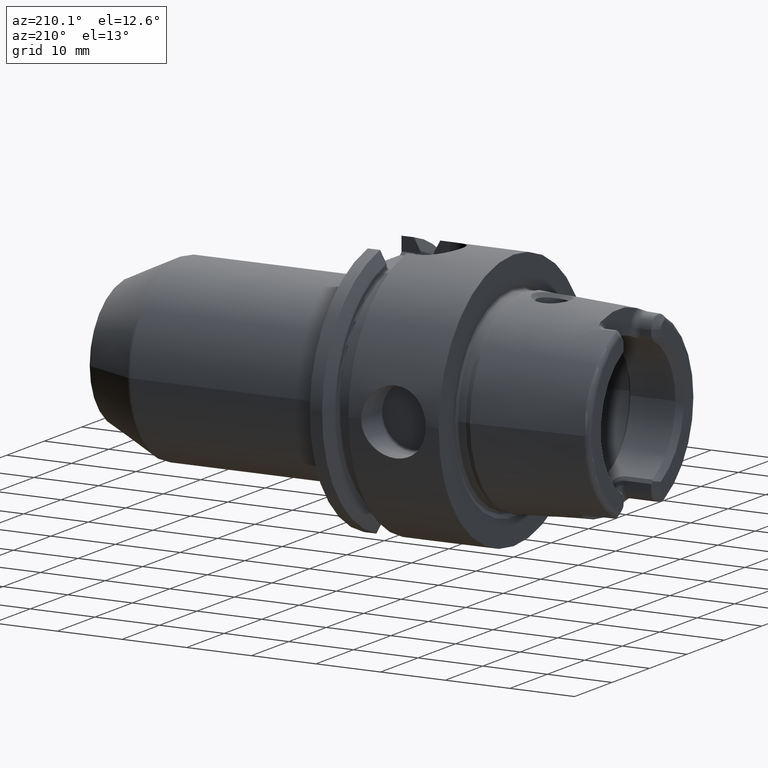
[diagram: clean part render]
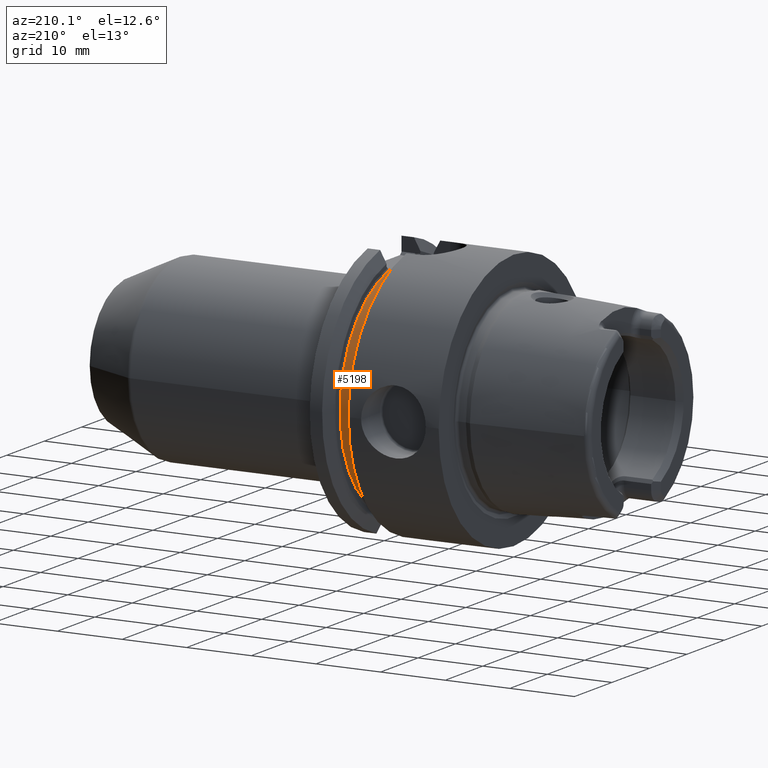
[diagram: same view with one face highlighted and labeled with its STEP entity id]
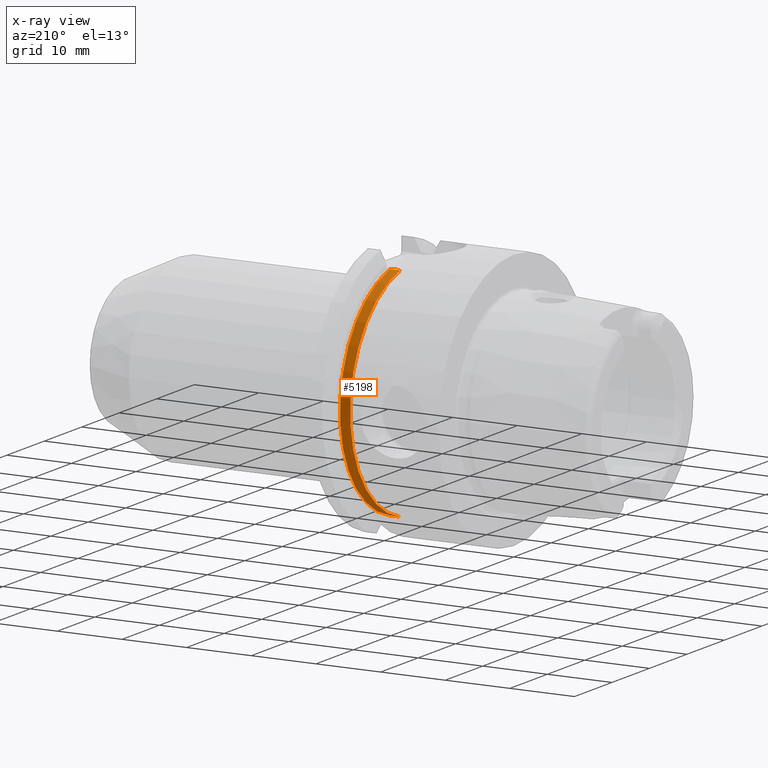
[diagram: x-ray of the same camera — body ghosted, the highlighted face saturated]
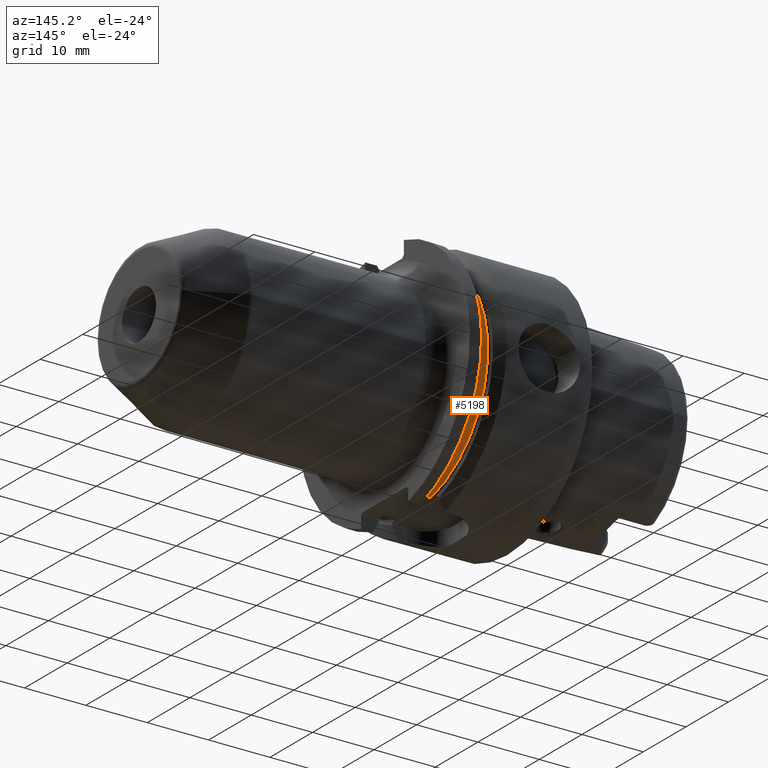
[diagram: same view with one face highlighted and labeled with its STEP entity id]
A machine part, auxiliary view. The second image highlights one B-rep face of the part: STEP entity #5198.
The next image is the same camera in x-ray: the body ghosted, the highlighted face saturated — about 0% of this face is hidden behind the body in this view.
A second angle (auxiliary view) of the same face is appended — the face is thin or edge-on in the first view.
In plain terms, the highlighted cylindrical surface (partial cylindrical patch) has radius 17.375 mm, axis along (1, 0, 0).
Its self-contained STEP definition (entity closure, byte-faithful):
#1736=CARTESIAN_POINT('',(1.67875E1,0.E0,0.E0));
#1737=DIRECTION('',(-1.E0,0.E0,0.E0));
#1738=DIRECTION('',(0.E0,2.322259366833E-1,9.726618705036E-1));
#1739=AXIS2_PLACEMENT_3D('',#1736,#1737,#1738);
#1761=CARTESIAN_POINT('',(1.52125E1,0.E0,0.E0));
#1762=DIRECTION('',(-1.E0,0.E0,0.E0));
#1763=DIRECTION('',(0.E0,2.322259366833E-1,9.726618705036E-1));
#1764=AXIS2_PLACEMENT_3D('',#1761,#1762,#1763);
#1766=DIRECTION('',(1.E0,0.E0,0.E0));
#1767=VECTOR('',#1766,1.575E0);
#1768=CARTESIAN_POINT('',(1.52125E1,4.034925649873E0,-1.69E1));
#1769=LINE('',#1768,#1767);
#1770=DIRECTION('',(-1.E0,0.E0,0.E0));
#1771=VECTOR('',#1770,1.575E0);
#1772=CARTESIAN_POINT('',(1.67875E1,4.034925649873E0,1.69E1));
#1773=LINE('',#1772,#1771);
#3100=CARTESIAN_POINT('',(1.52125E1,4.034925649873E0,1.69E1));
#3101=CARTESIAN_POINT('',(1.52125E1,4.034925649873E0,-1.69E1));
#3102=VERTEX_POINT('',#3100);
#3103=VERTEX_POINT('',#3101);
#3104=CARTESIAN_POINT('',(1.67875E1,4.034925649873E0,1.69E1));
#3105=CARTESIAN_POINT('',(1.67875E1,4.034925649873E0,-1.69E1));
#3106=VERTEX_POINT('',#3104);
#3107=VERTEX_POINT('',#3105);
#5187=CARTESIAN_POINT('',(1.376132433122E1,0.E0,0.E0));
#5188=DIRECTION('',(1.E0,0.E0,0.E0));
#5189=DIRECTION('',(0.E0,-1.E0,0.E0));
#5190=AXIS2_PLACEMENT_3D('',#5187,#5188,#5189);
#5191=CYLINDRICAL_SURFACE('',#5190,1.7375E1);
#5192=ORIENTED_EDGE('',*,*,#4737,.T.);
#5193=ORIENTED_EDGE('',*,*,#4791,.T.);
#5194=ORIENTED_EDGE('',*,*,#5148,.F.);
#5195=ORIENTED_EDGE('',*,*,#4911,.T.);
#5196=EDGE_LOOP('',(#5192,#5193,#5194,#5195));
#5197=FACE_OUTER_BOUND('',#5196,.F.);
#5198=ADVANCED_FACE('',(#5197),#5191,.T.);
#1740=CIRCLE('',#1739,1.7375E1);
#1765=CIRCLE('',#1764,1.7375E1);
#4737=EDGE_CURVE('',#3102,#3103,#1765,.T.);
#4791=EDGE_CURVE('',#3103,#3107,#1769,.T.);
#4911=EDGE_CURVE('',#3106,#3102,#1773,.T.);
#5148=EDGE_CURVE('',#3106,#3107,#1740,.T.);